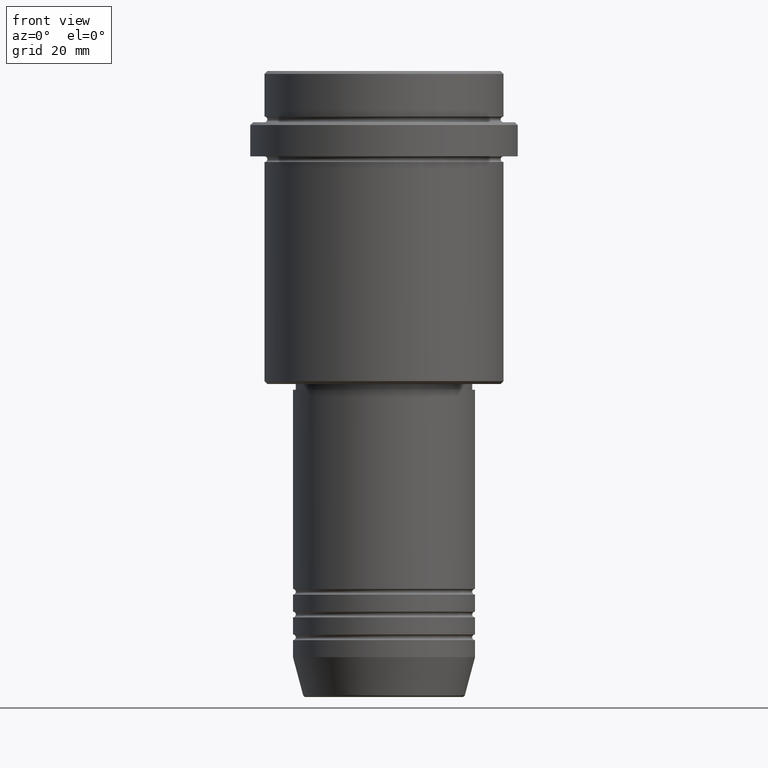
[diagram: clean part render]
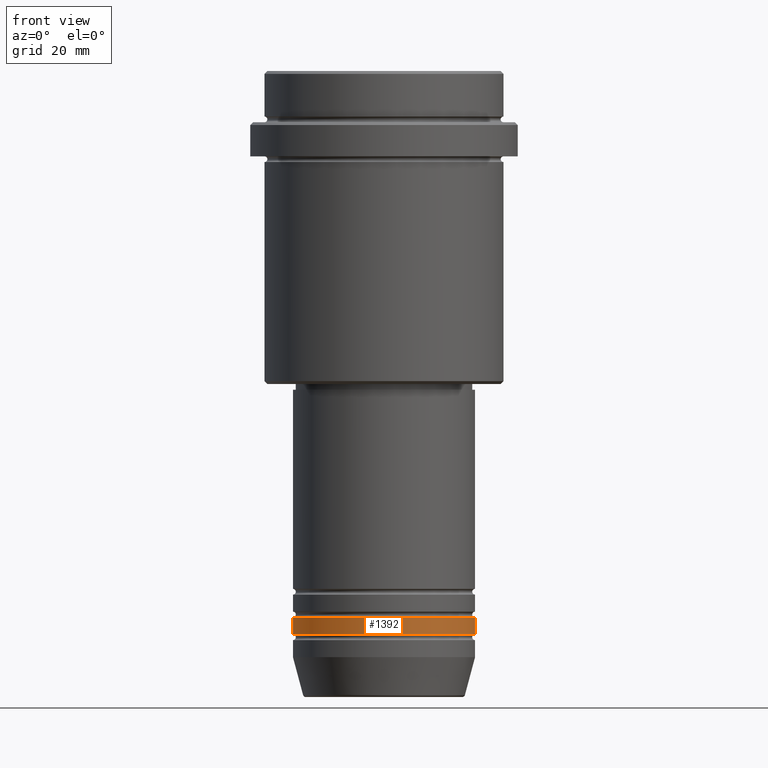
[diagram: same view with one face highlighted and labeled with its STEP entity id]
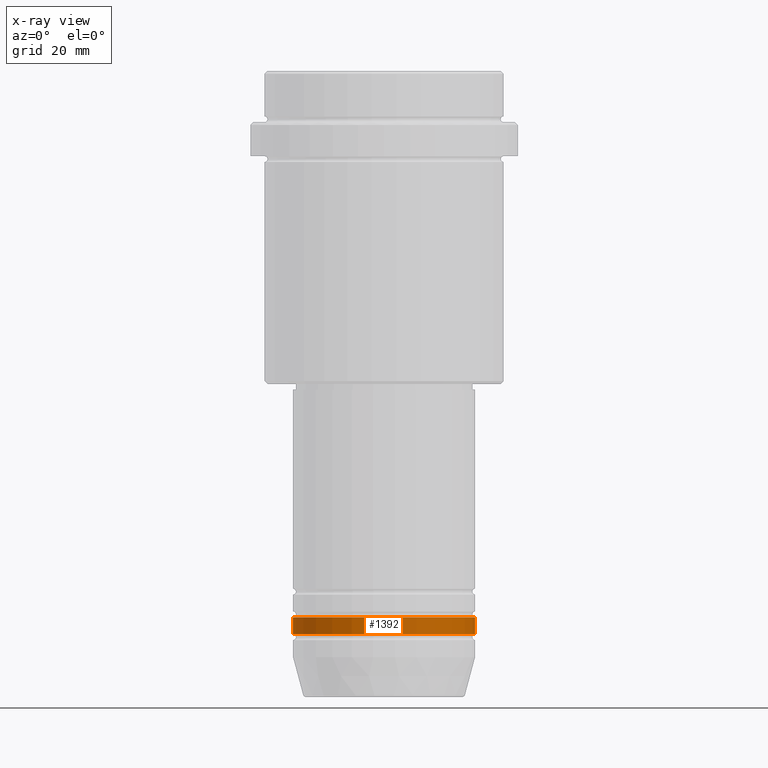
[diagram: x-ray of the same camera — body ghosted, the highlighted face saturated]
A machine part, front view. The second image highlights one B-rep face of the part: STEP entity #1392.
The next image is the same camera in x-ray: the body ghosted, the highlighted face saturated — about 0% of this face is hidden behind the body in this view.
In plain terms, the highlighted cylindrical surface (partial cylindrical patch) has radius 16 mm, axis along (-0, -0, 1).
Its self-contained STEP definition (entity closure, byte-faithful):
#41 = VERTEX_POINT ( 'NONE', #1039 ) ;
#42 = DIRECTION ( 'NONE',  ( -0.000000000000000000, -0.000000000000000000, 1.000000000000000000 ) ) ;
#77 = AXIS2_PLACEMENT_3D ( 'NONE', #1312, #448, #231 ) ;
#86 = CARTESIAN_POINT ( 'NONE',  ( 16.00000000000000000, 0.000000000000000000, 0.000000000000000000 ) ) ;
#165 = FACE_OUTER_BOUND ( 'NONE', #512, .T. ) ;
#190 = LINE ( 'NONE', #86, #318 ) ;
#197 = CARTESIAN_POINT ( 'NONE',  ( 16.00000000000000000, 0.000000000000000000, -95.99999999999988631 ) ) ;
#231 = DIRECTION ( 'NONE',  ( 1.000000000000000000, 0.000000000000000000, 0.000000000000000000 ) ) ;
#296 = LINE ( 'NONE', #309, #428 ) ;
#300 = ORIENTED_EDGE ( 'NONE', *, *, #1091, .F. ) ;
#309 = CARTESIAN_POINT ( 'NONE',  ( -16.00000000000000000, 1.959434878635765131E-15, 0.000000000000000000 ) ) ;
#318 = VECTOR ( 'NONE', #724, 1000.000000000000000 ) ;
#368 = CYLINDRICAL_SURFACE ( 'NONE', #467, 16.00000000000000000 ) ;
#428 = VECTOR ( 'NONE', #1174, 1000.000000000000000 ) ;
#448 = DIRECTION ( 'NONE',  ( -0.000000000000000000, -0.000000000000000000, 1.000000000000000000 ) ) ;
#467 = AXIS2_PLACEMENT_3D ( 'NONE', #1416, #1311, #815 ) ;
#497 = VERTEX_POINT ( 'NONE', #197 ) ;
#512 = EDGE_LOOP ( 'NONE', ( #686, #593, #1110, #300 ) ) ;
#593 = ORIENTED_EDGE ( 'NONE', *, *, #743, .T. ) ;
#645 = EDGE_CURVE ( 'NONE', #1122, #497, #190, .T. ) ;
#669 = AXIS2_PLACEMENT_3D ( 'NONE', #1229, #42, #1308 ) ;
#686 = ORIENTED_EDGE ( 'NONE', *, *, #980, .F. ) ;
#724 = DIRECTION ( 'NONE',  ( -0.000000000000000000, -0.000000000000000000, 1.000000000000000000 ) ) ;
#743 = EDGE_CURVE ( 'NONE', #41, #1122, #1375, .T. ) ;
#815 = DIRECTION ( 'NONE',  ( 1.000000000000000000, 0.000000000000000000, 0.000000000000000000 ) ) ;
#940 = VERTEX_POINT ( 'NONE', #1163 ) ;
#966 = CARTESIAN_POINT ( 'NONE',  ( 16.00000000000000000, 0.000000000000000000, -98.99999999999988631 ) ) ;
#980 = EDGE_CURVE ( 'NONE', #41, #940, #296, .T. ) ;
#1039 = CARTESIAN_POINT ( 'NONE',  ( -16.00000000000000000, 1.959434878635765131E-15, -98.99999999999988631 ) ) ;
#1057 = CIRCLE ( 'NONE', #77, 16.00000000000000000 ) ;
#1091 = EDGE_CURVE ( 'NONE', #940, #497, #1057, .T. ) ;
#1110 = ORIENTED_EDGE ( 'NONE', *, *, #645, .T. ) ;
#1122 = VERTEX_POINT ( 'NONE', #966 ) ;
#1163 = CARTESIAN_POINT ( 'NONE',  ( -16.00000000000000000, 1.959434878635765131E-15, -95.99999999999988631 ) ) ;
#1174 = DIRECTION ( 'NONE',  ( -0.000000000000000000, -0.000000000000000000, 1.000000000000000000 ) ) ;
#1229 = CARTESIAN_POINT ( 'NONE',  ( 0.000000000000000000, 0.000000000000000000, -98.99999999999988631 ) ) ;
#1308 = DIRECTION ( 'NONE',  ( 1.000000000000000000, 0.000000000000000000, 0.000000000000000000 ) ) ;
#1311 = DIRECTION ( 'NONE',  ( -0.000000000000000000, -0.000000000000000000, 1.000000000000000000 ) ) ;
#1312 = CARTESIAN_POINT ( 'NONE',  ( 0.000000000000000000, 0.000000000000000000, -95.99999999999988631 ) ) ;
#1375 = CIRCLE ( 'NONE', #669, 16.00000000000000000 ) ;
#1392 = ADVANCED_FACE ( 'NONE', ( #165 ), #368, .T. ) ;
#1416 = CARTESIAN_POINT ( 'NONE',  ( 0.000000000000000000, 0.000000000000000000, 0.000000000000000000 ) ) ;